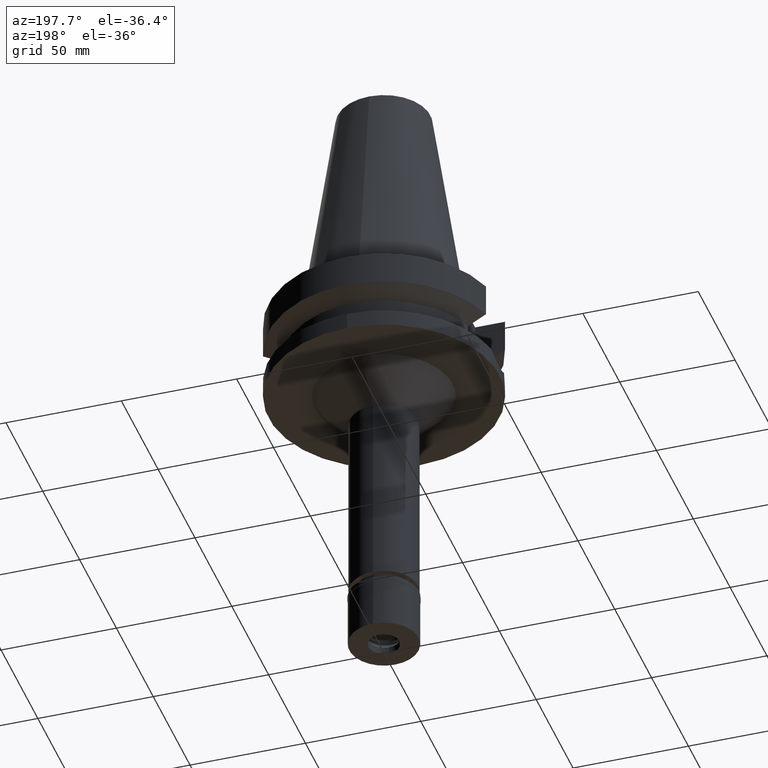
[diagram: clean part render]
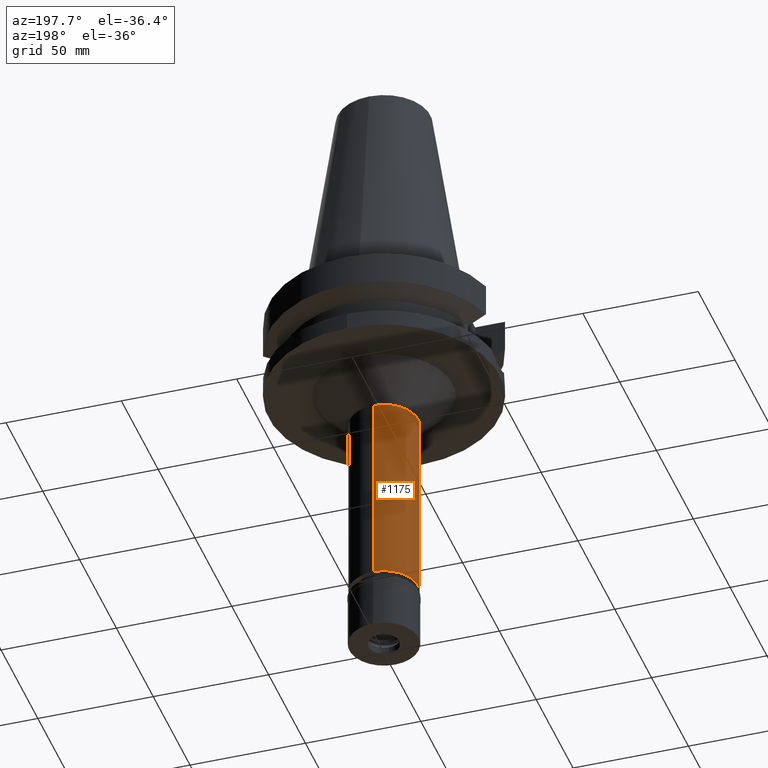
[diagram: same view with one face highlighted and labeled with its STEP entity id]
A machine part, auxiliary view. The second image highlights one B-rep face of the part: STEP entity #1175.
In plain terms, the highlighted cylindrical surface (edge-blend (fillet) strip) has radius 14.75 mm, axis along (0, 0, -1).
Its self-contained STEP definition (entity closure, byte-faithful):
#115 = DIRECTION ( 'NONE',  ( 0.0000000000000000000, 0.0000000000000000000, -1.000000000000000000 ) ) ;
#172 = AXIS2_PLACEMENT_3D ( 'NONE', #269, #1691, #1247 ) ;
#269 = CARTESIAN_POINT ( 'NONE',  ( 0.0000000000000000000, 2.628581889689999696E-14, -138.1999999999999886 ) ) ;
#375 = AXIS2_PLACEMENT_3D ( 'NONE', #475, #2423, #965 ) ;
#433 = EDGE_CURVE ( 'NONE', #1132, #684, #1440, .T. ) ;
#475 = CARTESIAN_POINT ( 'NONE',  ( 0.0000000000000000000, 0.0000000000000000000, -53.00000000000000000 ) ) ;
#536 = CARTESIAN_POINT ( 'NONE',  ( 0.0000000000000000000, -14.75000000000000000, -53.00000000000000000 ) ) ;
#684 = VERTEX_POINT ( 'NONE', #1869 ) ;
#685 = VECTOR ( 'NONE', #2556, 1000.000000000000000 ) ;
#690 = VERTEX_POINT ( 'NONE', #2376 ) ;
#729 = DIRECTION ( 'NONE',  ( 0.0000000000000000000, 0.0000000000000000000, -1.000000000000000000 ) ) ;
#797 = EDGE_LOOP ( 'NONE', ( #2690, #2187, #2054, #1348 ) ) ;
#807 = EDGE_CURVE ( 'NONE', #2279, #684, #1592, .T. ) ;
#943 = CARTESIAN_POINT ( 'NONE',  ( 0.0000000000000000000, 14.75000000000000000, -138.1999999999999886 ) ) ;
#965 = DIRECTION ( 'NONE',  ( 0.0000000000000000000, -1.000000000000000000, 0.0000000000000000000 ) ) ;
#1066 = DIRECTION ( 'NONE',  ( 0.0000000000000000000, -1.000000000000000000, 0.0000000000000000000 ) ) ;
#1132 = VERTEX_POINT ( 'NONE', #943 ) ;
#1175 = ADVANCED_FACE ( 'NONE', ( #2300 ), #2287, .T. ) ;
#1247 = DIRECTION ( 'NONE',  ( 0.0000000000000000000, 1.000000000000000000, 0.0000000000000000000 ) ) ;
#1284 = CARTESIAN_POINT ( 'NONE',  ( 0.0000000000000000000, 2.628581889689999696E-14, 114.6400000000000006 ) ) ;
#1348 = ORIENTED_EDGE ( 'NONE', *, *, #1414, .T. ) ;
#1414 = EDGE_CURVE ( 'NONE', #690, #1132, #1897, .T. ) ;
#1440 = CIRCLE ( 'NONE', #172, 14.75000000000000000 ) ;
#1558 = AXIS2_PLACEMENT_3D ( 'NONE', #1284, #115, #1066 ) ;
#1592 = LINE ( 'NONE', #2312, #685 ) ;
#1610 = VECTOR ( 'NONE', #729, 1000.000000000000000 ) ;
#1691 = DIRECTION ( 'NONE',  ( 0.0000000000000000000, 0.0000000000000000000, 1.000000000000000000 ) ) ;
#1869 = CARTESIAN_POINT ( 'NONE',  ( 0.0000000000000000000, -14.75000000000000000, -138.1999999999999886 ) ) ;
#1897 = LINE ( 'NONE', #2637, #1610 ) ;
#2054 = ORIENTED_EDGE ( 'NONE', *, *, #2670, .T. ) ;
#2187 = ORIENTED_EDGE ( 'NONE', *, *, #807, .F. ) ;
#2279 = VERTEX_POINT ( 'NONE', #536 ) ;
#2287 = CYLINDRICAL_SURFACE ( 'NONE', #1558, 14.75000000000000000 ) ;
#2300 = FACE_OUTER_BOUND ( 'NONE', #797, .T. ) ;
#2312 = CARTESIAN_POINT ( 'NONE',  ( 0.0000000000000000000, -14.75000000000000000, -53.00000000000000000 ) ) ;
#2376 = CARTESIAN_POINT ( 'NONE',  ( 0.0000000000000000000, 14.75000000000000000, -53.00000000000000000 ) ) ;
#2423 = DIRECTION ( 'NONE',  ( 0.0000000000000000000, 0.0000000000000000000, -1.000000000000000000 ) ) ;
#2457 = CIRCLE ( 'NONE', #375, 14.75000000000000000 ) ;
#2556 = DIRECTION ( 'NONE',  ( 0.0000000000000000000, 0.0000000000000000000, -1.000000000000000000 ) ) ;
#2637 = CARTESIAN_POINT ( 'NONE',  ( 0.0000000000000000000, 14.75000000000000000, -53.00000000000000000 ) ) ;
#2670 = EDGE_CURVE ( 'NONE', #2279, #690, #2457, .T. ) ;
#2690 = ORIENTED_EDGE ( 'NONE', *, *, #433, .T. ) ;